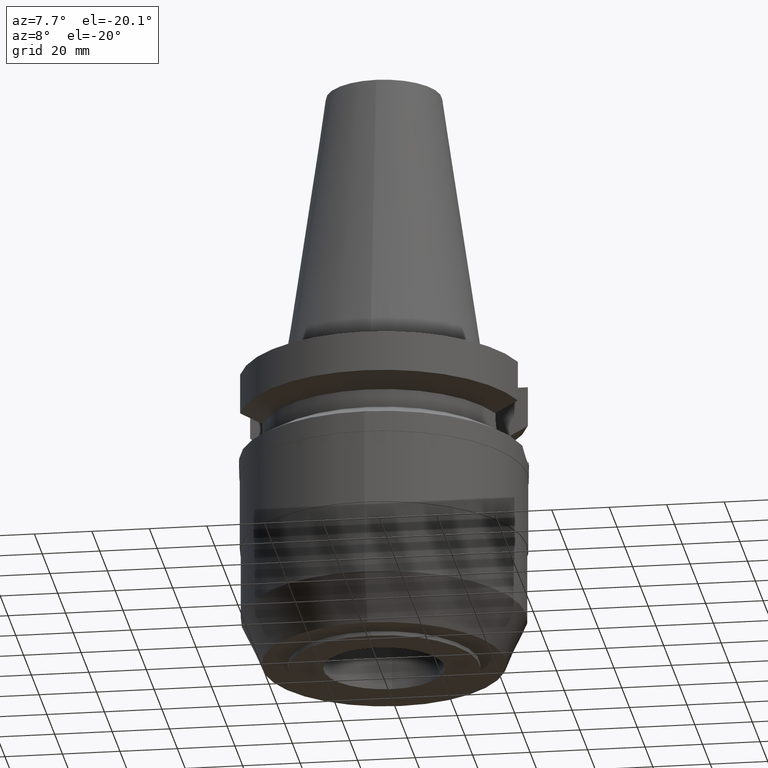
[diagram: clean part render]
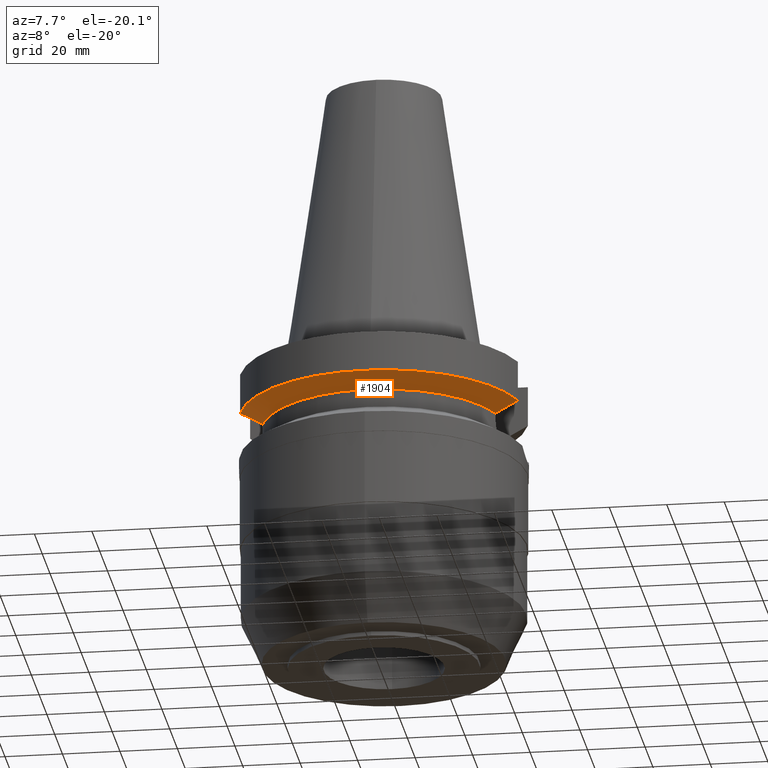
[diagram: same view with one face highlighted and labeled with its STEP entity id]
A machine part, auxiliary view. The second image highlights one B-rep face of the part: STEP entity #1904.
In plain terms, the highlighted conical surface has half-angle 60 deg.
Its self-contained STEP definition (entity closure, byte-faithful):
#824=CARTESIAN_POINT('',(-4.832056912893E1,-1.285000385431E1,
-1.566265770912E1));
#825=CARTESIAN_POINT('',(-4.745408731066E1,-1.285000385431E1,
-1.614611803996E1));
#826=CARTESIAN_POINT('',(-4.572064990092E1,-1.284999774083E1,
-1.711204784223E1));
#827=CARTESIAN_POINT('',(-4.311729580002E1,-1.285000212564E1,
-1.855526397750E1));
#828=CARTESIAN_POINT('',(-4.138011681522E1,-1.284999654629E1,
-1.951445449263E1));
#829=CARTESIAN_POINT('',(-4.051083298033E1,-1.284999654629E1,
-1.999284575947E1));
#868=CARTESIAN_POINT('',(0.E0,1.006319759054E-14,-1.566269223573E1));
#869=DIRECTION('',(0.E0,0.E0,1.E0));
#870=DIRECTION('',(-9.664114030784E-1,-2.57E-1,0.E0));
#871=AXIS2_PLACEMENT_3D('',#868,#869,#870);
#876=CARTESIAN_POINT('',(0.E0,1.006319759054E-14,-1.566269223573E1));
#877=DIRECTION('',(0.E0,0.E0,1.E0));
#878=DIRECTION('',(0.E0,-1.E0,0.E0));
#879=AXIS2_PLACEMENT_3D('',#876,#877,#878);
#884=CARTESIAN_POINT('',(0.E0,1.006319759054E-14,-1.999281925465E1));
#885=DIRECTION('',(0.E0,0.E0,-1.E0));
#886=DIRECTION('',(9.531960443487E-1,-3.023529411765E-1,0.E0));
#887=AXIS2_PLACEMENT_3D('',#884,#885,#886);
#892=CARTESIAN_POINT('',(0.E0,1.006319759054E-14,-1.999281925465E1));
#893=DIRECTION('',(0.E0,0.E0,-1.E0));
#894=DIRECTION('',(0.E0,-1.E0,0.E0));
#895=AXIS2_PLACEMENT_3D('',#892,#893,#894);
#914=CARTESIAN_POINT('',(4.051083298256E1,-1.284999653928E1,-1.999284581326E1));
#915=CARTESIAN_POINT('',(4.138011685144E1,-1.284999653928E1,-1.951445452764E1));
#916=CARTESIAN_POINT('',(4.311729569249E1,-1.285000212889E1,-1.855526379674E1));
#917=CARTESIAN_POINT('',(4.572064976077E1,-1.284999773998E1,-1.711204758631E1));
#918=CARTESIAN_POINT('',(4.745408731201E1,-1.285000385413E1,-1.614611804087E1));
#919=CARTESIAN_POINT('',(4.832056912898E1,-1.285000385413E1,-1.566265771076E1));
#1167=CARTESIAN_POINT('',(-4.051083298033E1,-1.284999654629E1,
-1.999284575947E1));
#1168=VERTEX_POINT('',#1167);
#1169=CARTESIAN_POINT('',(4.051083188482E1,-1.285E1,-1.999281925465E1));
#1170=CARTESIAN_POINT('',(0.E0,-4.25E1,-1.999281925465E1));
#1171=VERTEX_POINT('',#1169);
#1172=VERTEX_POINT('',#1170);
#1183=CARTESIAN_POINT('',(-4.832056912893E1,-1.285000385431E1,
-1.566265770912E1));
#1184=VERTEX_POINT('',#1183);
#1214=CARTESIAN_POINT('',(0.E0,-5.E1,-1.566269223573E1));
#1215=CARTESIAN_POINT('',(4.832057015392E1,-1.285E1,-1.566269223573E1));
#1216=VERTEX_POINT('',#1214);
#1217=VERTEX_POINT('',#1215);
#1888=CARTESIAN_POINT('',(0.E0,1.006319759054E-14,-1.782775574519E1));
#1889=DIRECTION('',(0.E0,0.E0,1.E0));
#1890=DIRECTION('',(0.E0,1.E0,0.E0));
#1891=AXIS2_PLACEMENT_3D('',#1888,#1889,#1890);
#1892=CONICAL_SURFACE('',#1891,4.625E1,6.E1);
#1893=ORIENTED_EDGE('',*,*,#1864,.F.);
#1895=ORIENTED_EDGE('',*,*,#1894,.T.);
#1897=ORIENTED_EDGE('',*,*,#1896,.T.);
#1899=ORIENTED_EDGE('',*,*,#1898,.F.);
#1900=ORIENTED_EDGE('',*,*,#1878,.T.);
#1901=ORIENTED_EDGE('',*,*,#1876,.T.);
#1902=EDGE_LOOP('',(#1893,#1895,#1897,#1899,#1900,#1901));
#1903=FACE_OUTER_BOUND('',#1902,.F.);
#830=B_SPLINE_CURVE_WITH_KNOTS('',3,(#824,#825,#826,#827,#828,#829),
.UNSPECIFIED.,.F.,.F.,(4,1,1,4),(0.E0,3.333333333333E-1,6.666666666667E-1,1.E0),
.UNSPECIFIED.);
#872=CIRCLE('',#871,5.E1);
#880=CIRCLE('',#879,5.E1);
#888=CIRCLE('',#887,4.25E1);
#896=CIRCLE('',#895,4.25E1);
#920=B_SPLINE_CURVE_WITH_KNOTS('',3,(#914,#915,#916,#917,#918,#919),
.UNSPECIFIED.,.F.,.F.,(4,1,1,4),(0.E0,3.333333333333E-1,6.666666666667E-1,1.E0),
.UNSPECIFIED.);
#1864=EDGE_CURVE('',#1184,#1168,#830,.T.);
#1876=EDGE_CURVE('',#1172,#1168,#896,.T.);
#1878=EDGE_CURVE('',#1171,#1172,#888,.T.);
#1894=EDGE_CURVE('',#1184,#1216,#872,.T.);
#1896=EDGE_CURVE('',#1216,#1217,#880,.T.);
#1898=EDGE_CURVE('',#1171,#1217,#920,.T.);
#1904=ADVANCED_FACE('',(#1903),#1892,.T.);